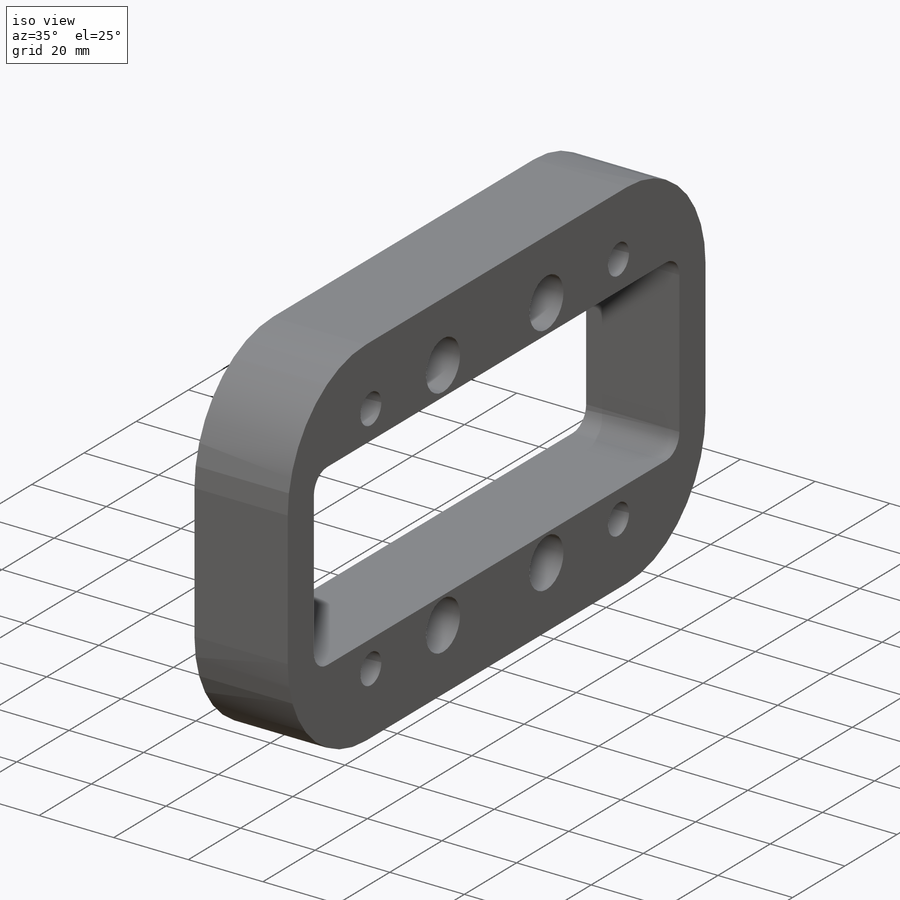
[diagram: iso view]
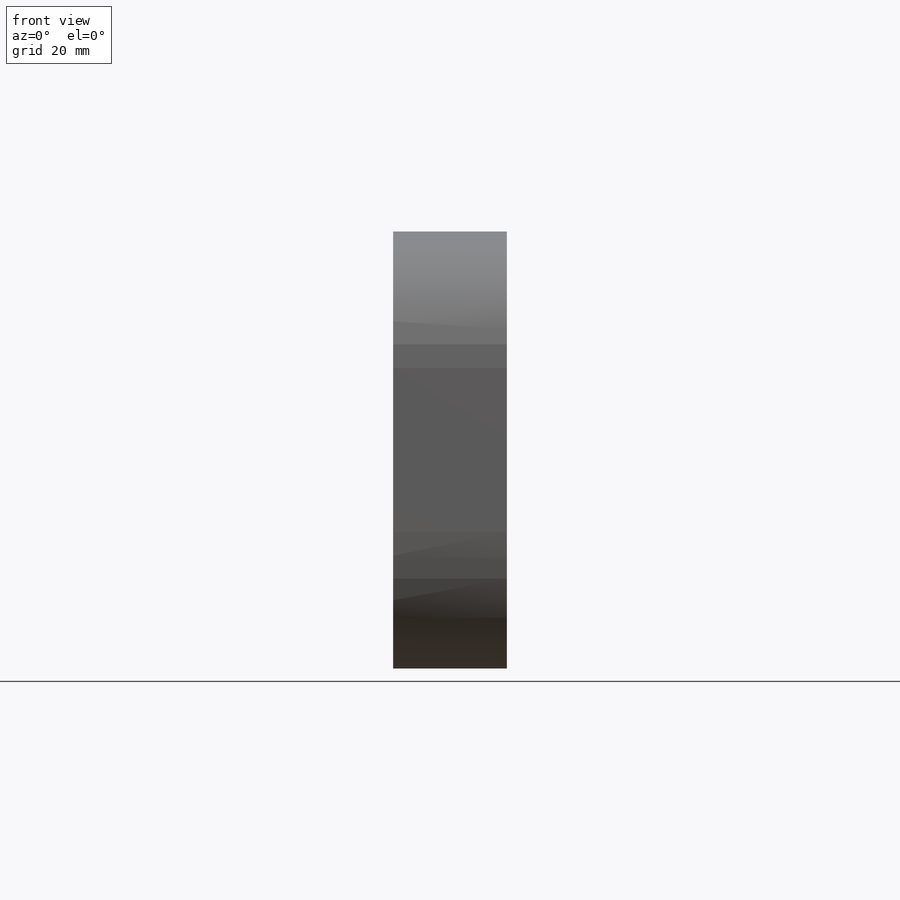
[diagram: front view]
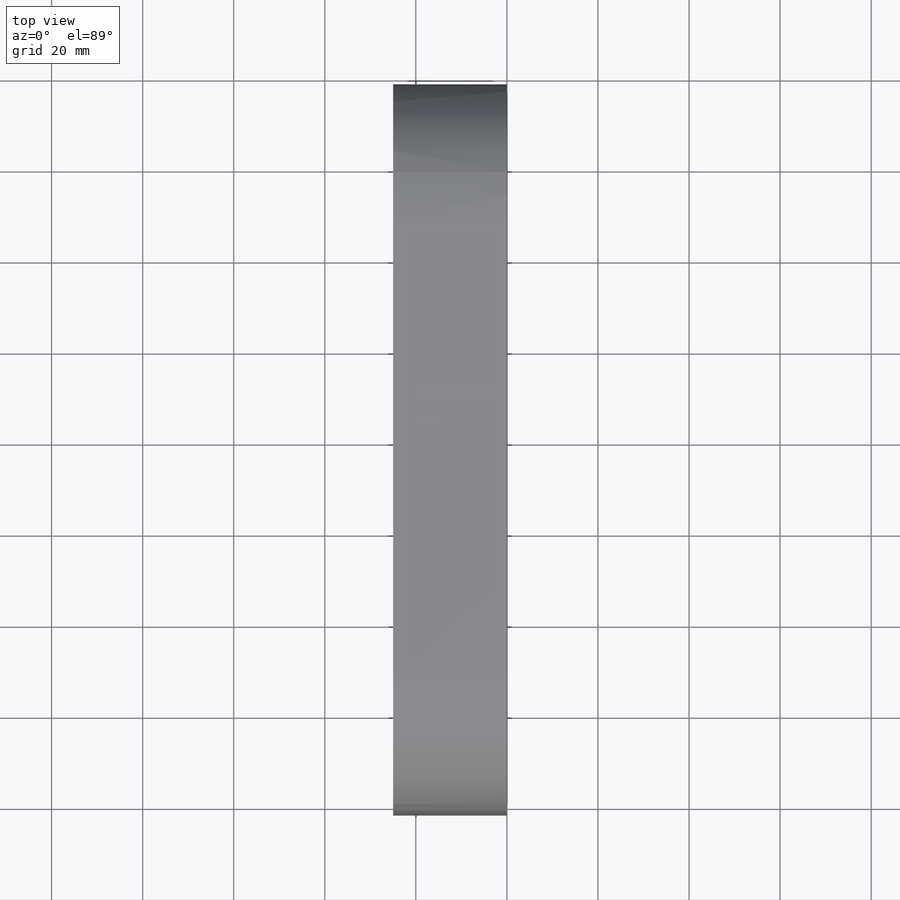
[diagram: top view]
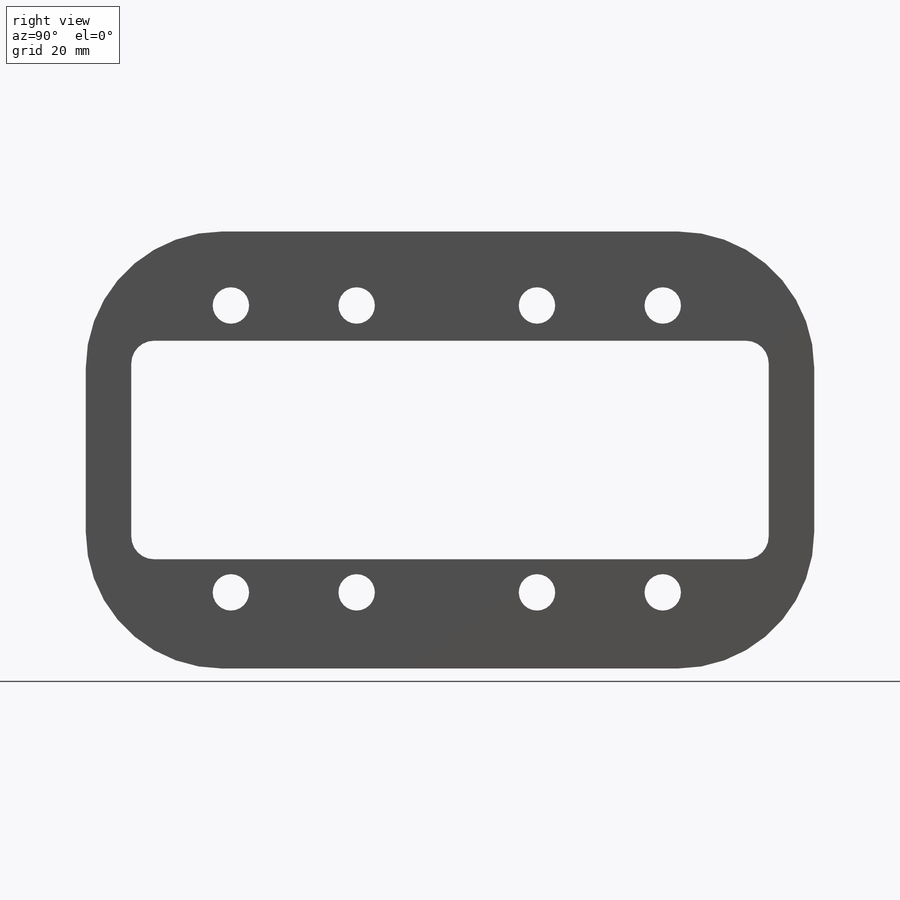
[diagram: right view]
SOLIDWORKS PART (.sldprt)
format: sldprt  version: not decoded by parser v0  size: 267,264 bytes
history: native  units: mm
features: plane x3, sketch x2, fillet x2, material x1, extrude x1, cut_extrude x1 (+10 scaffold rows collapsed)
feature tree (20):
  scaffold x10  (default folders/planes/origin — collapsed)
  material  "材质 <未指定>"
  plane  "前视基准面"
  plane  "上视基准面"
  plane  "右视基准面"
  sketch  "草图1"  dims[c1.D1=8.0mm c1.D2=8.0mm c1.D5=8.0mm c1.D6=8.0mm c1.D7=8.0mm c1.D8=8.0mm c1.D9=8.0mm c1.D10=8.0mm c1.D11=8.0mm c2.D1=~16.944441mm c2.D2=~62.323349mm c2.D3=160.0mm c2.D4=~98.058452mm c2.D5=27.62mm c2.D6=~27.621562mm c2.D7=27.62mm c2.D8=~27.621562mm c2.D9=~39.606653mm c2.D10=~39.606653mm c2.D11=~37.16302mm c2.D12=48.0mm c2.D13=140.0mm c2.D14=24.0mm c2.D15=96.0mm c2.D16=10.0mm]
  extrude  "凸台-拉伸1"  Depth=25mm
  fillet  "圆角1"  Radius=30mm
  fillet  "圆角2"  Radius=5mm
  sketch  "草图11"  dims[D1=~6.611111mm]
  cut_extrude  "切除-拉伸1"  Depth=15mm
decode coverage: 6 of 6 modeling features carry decoded parameters
note: ~ marks probable driven/reference dimensions
note: suppression state not decoded; provenance and decode notes live in map.json
